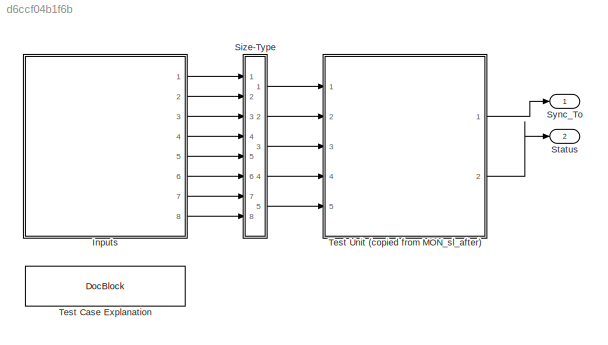
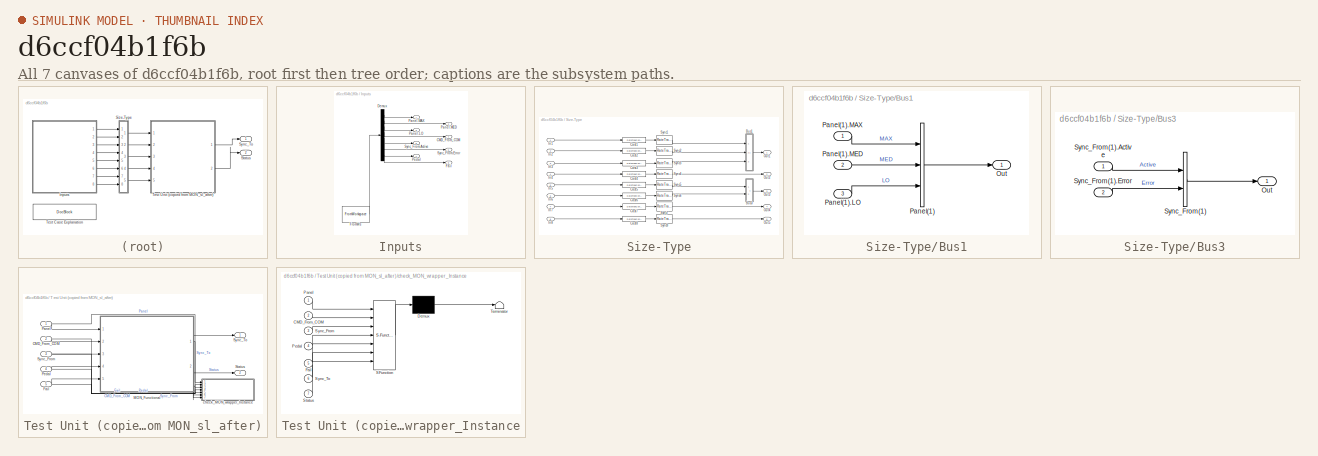
[diagram: thumbnail index - all 7 canvases of the model, root first then tree order]
MODEL slx_d6ccf04b1f6b
KIND model
CONFIG AbsTol = auto
CONFIG FixedStep = 0.01
CONFIG MaxStep = auto
CONFIG MinStep = auto
CONFIG RelTol = 1e-3
CONFIG SampleTimeConstraint = Unconstrained
CONFIG Solver = FixedStepDiscrete
CONFIG SolverMode = Auto
CONFIG SolverName = FixedStepDiscrete
CONFIG StartTime = 0
CONFIG StopTime = 0.01
BLOCK [SubSystem] Inputs
  ClipboardFcn = sigbuilder_block('clipboard');
  CloseFcn = sigbuilder_block('close');
  ContinueFcn = sigbuilder_block('continue');
  CopyFcn = sigbuilder_block('copy');
  DeleteFcn = sigbuilder_block('delete');
  LoadFcn = sigbuilder_block('load',[50 50 520 400 ]);
  MaskHideContents = on
  ModelCloseFcn = sigbuilder_block('modelClose');
  NameChangeFcn = sigbuilder_block('namechange');
  OpenFcn = sigbuilder_block('open');
  PauseFcn = sigbuilder_block('pause');
  Ports = [0, 8]
  PreSaveFcn = sigbuilder_block('preSave');
  RequestExecContextInheritance = off
  StartFcn = sigbuilder_block('start');
  StopFcn = sigbuilder_block('stop');
  Tag = STV Subsys
  Variant = off
BLOCK [Outport] Inputs/CMD_From_COM
  IconDisplay = Port number
  Port = 4
  Tag = STV Outport
BLOCK [Demux] Inputs/Demux
  Outputs = 8
  Ports = [1, 8]
  Tag = STV Demux
BLOCK [Outport] Inputs/Fail
  IconDisplay = Port number
  Port = 8
  Tag = STV Outport
BLOCK [FromWorkspace] Inputs/FromWs
  SampleTime = 0
  Tag = STV FromWs
  VariableName = tuvar
BLOCK [Outport] Inputs/Panel.LO
  IconDisplay = Port number
  Port = 3
  Tag = STV Outport
BLOCK [Outport] Inputs/Panel.MAX
  IconDisplay = Port number
  Tag = STV Outport
BLOCK [Outport] Inputs/Panel.MED
  IconDisplay = Port number
  Port = 2
  Tag = STV Outport
BLOCK [Outport] Inputs/Pedal
  IconDisplay = Port number
  Port = 7
  Tag = STV Outport
BLOCK [Outport] Inputs/Sync_From.Active
  IconDisplay = Port number
  Port = 5
  Tag = STV Outport
BLOCK [Outport] Inputs/Sync_From.Error
  IconDisplay = Port number
  Port = 6
  Tag = STV Outport
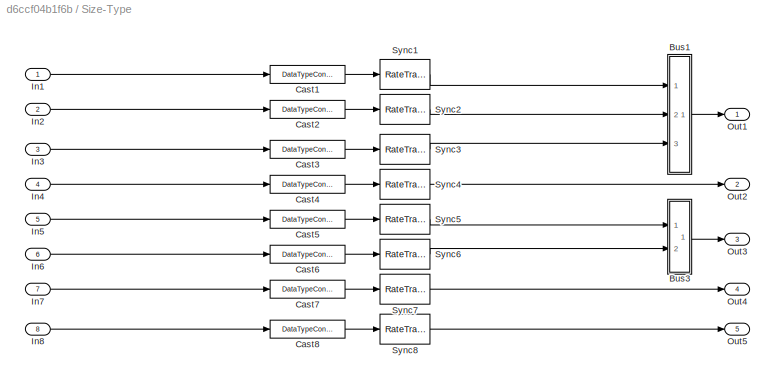
BLOCK [SubSystem] Size-Type
  Ports = [8, 5]
  RequestExecContextInheritance = off
  Variant = off
BLOCK [SubSystem] Size-Type/Bus1
  Ports = [3, 1]
  RequestExecContextInheritance = off
  Variant = off
BLOCK [Outport] Size-Type/Bus1/Out
  IconDisplay = Port number
BLOCK [BusCreator] Size-Type/Bus1/Panel(1)
  InheritFromInputs = on
  Inputs = 3
  NonVirtualBus = on
  OutDataTypeStr = Bus: PanelMsgImpl
  Ports = [3, 1]
BLOCK [Inport] Size-Type/Bus1/Panel(1).LO
  IconDisplay = Port number
  Port = 3
BLOCK [Inport] Size-Type/Bus1/Panel(1).MAX
  IconDisplay = Port number
BLOCK [Inport] Size-Type/Bus1/Panel(1).MED
  IconDisplay = Port number
  Port = 2
BLOCK [SubSystem] Size-Type/Bus3
  Ports = [2, 1]
  RequestExecContextInheritance = off
  Variant = off
BLOCK [Outport] Size-Type/Bus3/Out
  IconDisplay = Port number
BLOCK [BusCreator] Size-Type/Bus3/Sync_From(1)
  InheritFromInputs = on
  Inputs = 2
  NonVirtualBus = on
  OutDataTypeStr = Bus: SyncMsgImpl
  Ports = [2, 1]
BLOCK [Inport] Size-Type/Bus3/Sync_From(1).Active
  IconDisplay = Port number
BLOCK [Inport] Size-Type/Bus3/Sync_From(1).Error
  IconDisplay = Port number
  Port = 2
BLOCK [DataTypeConversion] Size-Type/Cast1
  OutDataTypeStr = boolean
  RndMeth = Nearest
BLOCK [DataTypeConversion] Size-Type/Cast2
  OutDataTypeStr = boolean
  RndMeth = Nearest
BLOCK [DataTypeConversion] Size-Type/Cast3
  OutDataTypeStr = boolean
  RndMeth = Nearest
BLOCK [DataTypeConversion] Size-Type/Cast4
  OutDataTypeStr = int32
  RndMeth = Nearest
BLOCK [DataTypeConversion] Size-Type/Cast5
  OutDataTypeStr = boolean
  RndMeth = Nearest
BLOCK [DataTypeConversion] Size-Type/Cast6
  OutDataTypeStr = boolean
  RndMeth = Nearest
BLOCK [DataTypeConversion] Size-Type/Cast7
  OutDataTypeStr = int32
  RndMeth = Nearest
BLOCK [DataTypeConversion] Size-Type/Cast8
  OutDataTypeStr = boolean
  RndMeth = Nearest
BLOCK [Inport] Size-Type/In1
  IconDisplay = Port number
BLOCK [Inport] Size-Type/In2
  IconDisplay = Port number
  Port = 2
BLOCK [Inport] Size-Type/In3
  IconDisplay = Port number
  Port = 3
BLOCK [Inport] Size-Type/In4
  IconDisplay = Port number
  Port = 4
BLOCK [Inport] Size-Type/In5
  IconDisplay = Port number
  Port = 5
BLOCK [Inport] Size-Type/In6
  IconDisplay = Port number
  Port = 6
BLOCK [Inport] Size-Type/In7
  IconDisplay = Port number
  Port = 7
BLOCK [Inport] Size-Type/In8
  IconDisplay = Port number
  Port = 8
BLOCK [Outport] Size-Type/Out1
  IconDisplay = Port number
BLOCK [Outport] Size-Type/Out2
  IconDisplay = Port number
  Port = 2
BLOCK [Outport] Size-Type/Out3
  IconDisplay = Port number
  Port = 3
BLOCK [Outport] Size-Type/Out4
  IconDisplay = Port number
  Port = 4
BLOCK [Outport] Size-Type/Out5
  IconDisplay = Port number
  Port = 5
BLOCK [RateTransition] Size-Type/Sync1
  OutPortSampleTime = [0.01,0]
BLOCK [RateTransition] Size-Type/Sync2
  OutPortSampleTime = [0.01,0]
BLOCK [RateTransition] Size-Type/Sync3
  OutPortSampleTime = [0.01,0]
BLOCK [RateTransition] Size-Type/Sync4
  OutPortSampleTime = [0.01,0]
BLOCK [RateTransition] Size-Type/Sync5
  OutPortSampleTime = [0.01,0]
BLOCK [RateTransition] Size-Type/Sync6
  OutPortSampleTime = [0.01,0]
BLOCK [RateTransition] Size-Type/Sync7
  OutPortSampleTime = [0.01,0]
BLOCK [RateTransition] Size-Type/Sync8
  OutPortSampleTime = [0.01,0]
BLOCK [Outport] Status
  BusOutputAsStruct = on
  IconDisplay = Port number
  OutDataTypeStr = Bus: ChannelStatusImpl
  Port = 2
BLOCK [Outport] Sync_To
  BusOutputAsStruct = on
  IconDisplay = Port number
  OutDataTypeStr = Bus: SyncMsgImpl
BLOCK [Reference] Test Case Explanation  REF=simulink/Model-Wide
Utilities/DocBlock
  Ports = []
  SourceBlock = simulink/Model-Wide\nUtilities/DocBlock
  SourceType = DocBlock
  UserDataPersistent = on
BLOCK [SubSystem] Test Unit (copied from MON_sl_after)
  Permissions = ReadOnly
  Ports = [5, 2]
  RequestExecContextInheritance = off
  Variant = off
BLOCK [Inport] Test Unit (copied from MON_sl_after)/CMD_From_COM
  IconDisplay = Port number
  Interpolate = off
  OutDataTypeStr = int32
  Port = 2
  SampleTime = dt
BLOCK [Inport] Test Unit (copied from MON_sl_after)/Fail
  IconDisplay = Port number
  Interpolate = off
  OutDataTypeStr = boolean
  Port = 5
  SampleTime = dt
BLOCK [ModelReference] Test Unit (copied from MON_sl_after)/MON_Functional
  ModelNameDialog = MON_Functional.slx
  ModelReferenceVersion = 1.2
  Ports = [5, 2]
  Variant = off
BLOCK [Inport] Test Unit (copied from MON_sl_after)/Panel
  BusOutputAsStruct = on
  IconDisplay = Port number
  Interpolate = off
  OutDataTypeStr = Bus: PanelMsgImpl
  SampleTime = dt
BLOCK [Inport] Test Unit (copied from MON_sl_after)/Pedal
  IconDisplay = Port number
  Interpolate = off
  OutDataTypeStr = int32
  Port = 4
  SampleTime = dt
BLOCK [Outport] Test Unit (copied from MON_sl_after)/Status
  BusOutputAsStruct = on
  IconDisplay = Port number
  OutDataTypeStr = Bus: ChannelStatusImpl
  Port = 2
BLOCK [Inport] Test Unit (copied from MON_sl_after)/Sync_From
  BusOutputAsStruct = on
  IconDisplay = Port number
  Interpolate = off
  OutDataTypeStr = Bus: SyncMsgImpl
  Port = 3
  SampleTime = dt
BLOCK [Outport] Test Unit (copied from MON_sl_after)/Sync_To
  BusOutputAsStruct = on
  IconDisplay = Port number
  OutDataTypeStr = Bus: SyncMsgImpl
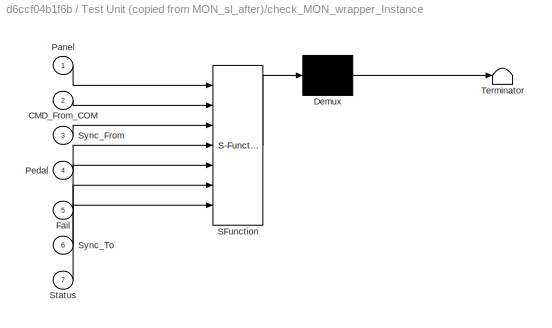
BLOCK [SubSystem] Test Unit (copied from MON_sl_after)/check_MON_wrapper_Instance
  ErrorFcn = Stateflow.Translate.translate
  PermitHierarchicalResolution = ExplicitOnly
  Ports = [7]
  RequestExecContextInheritance = off
  SFBlockType = MATLAB Function
  TreatAsAtomicUnit = on
  Variant = off
BLOCK [Demux] Test Unit (copied from MON_sl_after)/check_MON_wrapper_Instance/ Demux 
  Outputs = 1
  Ports = [1, 1]
BLOCK [S-Function] Test Unit (copied from MON_sl_after)/check_MON_wrapper_Instance/ SFunction 
  EnableBusSupport = off
  FunctionName = sf_sfun
  PortCounts = [7 1]
  Ports = [7, 1]
  SFunctionDeploymentMode = off
  Tag = Stateflow S-Function MON_sl_after_harness 2
BLOCK [Terminator] Test Unit (copied from MON_sl_after)/check_MON_wrapper_Instance/ Terminator 
BLOCK [Inport] Test Unit (copied from MON_sl_after)/check_MON_wrapper_Instance/CMD_From_COM
  IconDisplay = Port number
  Port = 2
BLOCK [Inport] Test Unit (copied from MON_sl_after)/check_MON_wrapper_Instance/Fail
  IconDisplay = Port number
  Port = 5
BLOCK [Inport] Test Unit (copied from MON_sl_after)/check_MON_wrapper_Instance/Panel
  IconDisplay = Port number
BLOCK [Inport] Test Unit (copied from MON_sl_after)/check_MON_wrapper_Instance/Pedal
  IconDisplay = Port number
  Port = 4
BLOCK [Inport] Test Unit (copied from MON_sl_after)/check_MON_wrapper_Instance/Status
  IconDisplay = Port number
  Port = 7
BLOCK [Inport] Test Unit (copied from MON_sl_after)/check_MON_wrapper_Instance/Sync_From
  IconDisplay = Port number
  Port = 3
BLOCK [Inport] Test Unit (copied from MON_sl_after)/check_MON_wrapper_Instance/Sync_To
  IconDisplay = Port number
  Port = 6
LINE Inputs/Demux:1 -> Inputs/Panel.MAX:1
LINE Inputs/Demux:2 -> Inputs/Panel.MED:1
LINE Inputs/Demux:3 -> Inputs/Panel.LO:1
LINE Inputs/Demux:4 -> Inputs/CMD_From_COM:1
LINE Inputs/Demux:5 -> Inputs/Sync_From.Active:1
LINE Inputs/Demux:6 -> Inputs/Sync_From.Error:1
LINE Inputs/Demux:7 -> Inputs/Pedal:1
LINE Inputs/Demux:8 -> Inputs/Fail:1
LINE Inputs/FromWs:1 -> Inputs/Demux:1
LINE Inputs:1 -> Size-Type:1
LINE Inputs:2 -> Size-Type:2
LINE Inputs:3 -> Size-Type:3
LINE Inputs:4 -> Size-Type:4
LINE Inputs:5 -> Size-Type:5
LINE Inputs:6 -> Size-Type:6
LINE Inputs:7 -> Size-Type:7
LINE Inputs:8 -> Size-Type:8
LINE Size-Type/Bus1/Panel(1).LO:1 -> Size-Type/Bus1/Panel(1):3
LINE Size-Type/Bus1/Panel(1).MAX:1 -> Size-Type/Bus1/Panel(1):1
LINE Size-Type/Bus1/Panel(1).MED:1 -> Size-Type/Bus1/Panel(1):2
LINE Size-Type/Bus1/Panel(1):1 -> Size-Type/Bus1/Out:1
LINE Size-Type/Bus1:1 -> Size-Type/Out1:1
LINE Size-Type/Bus3/Sync_From(1).Active:1 -> Size-Type/Bus3/Sync_From(1):1
LINE Size-Type/Bus3/Sync_From(1).Error:1 -> Size-Type/Bus3/Sync_From(1):2
LINE Size-Type/Bus3/Sync_From(1):1 -> Size-Type/Bus3/Out:1
LINE Size-Type/Bus3:1 -> Size-Type/Out3:1
LINE Size-Type/Cast1:1 -> Size-Type/Sync1:1
LINE Size-Type/Cast2:1 -> Size-Type/Sync2:1
LINE Size-Type/Cast3:1 -> Size-Type/Sync3:1
LINE Size-Type/Cast4:1 -> Size-Type/Sync4:1
LINE Size-Type/Cast5:1 -> Size-Type/Sync5:1
LINE Size-Type/Cast6:1 -> Size-Type/Sync6:1
LINE Size-Type/Cast7:1 -> Size-Type/Sync7:1
LINE Size-Type/Cast8:1 -> Size-Type/Sync8:1
LINE Size-Type/In1:1 -> Size-Type/Cast1:1
LINE Size-Type/In2:1 -> Size-Type/Cast2:1
LINE Size-Type/In3:1 -> Size-Type/Cast3:1
LINE Size-Type/In4:1 -> Size-Type/Cast4:1
LINE Size-Type/In5:1 -> Size-Type/Cast5:1
LINE Size-Type/In6:1 -> Size-Type/Cast6:1
LINE Size-Type/In7:1 -> Size-Type/Cast7:1
LINE Size-Type/In8:1 -> Size-Type/Cast8:1
LINE Size-Type/Sync1:1 -> Size-Type/Bus1:1
LINE Size-Type/Sync2:1 -> Size-Type/Bus1:2
LINE Size-Type/Sync3:1 -> Size-Type/Bus1:3
LINE Size-Type/Sync4:1 -> Size-Type/Out2:1
LINE Size-Type/Sync5:1 -> Size-Type/Bus3:1
LINE Size-Type/Sync6:1 -> Size-Type/Bus3:2
LINE Size-Type/Sync7:1 -> Size-Type/Out4:1
LINE Size-Type/Sync8:1 -> Size-Type/Out5:1
LINE Size-Type:1 -> Test Unit (copied from MON_sl_after):1
LINE Size-Type:2 -> Test Unit (copied from MON_sl_after):2
LINE Size-Type:3 -> Test Unit (copied from MON_sl_after):3
LINE Size-Type:4 -> Test Unit (copied from MON_sl_after):4
LINE Size-Type:5 -> Test Unit (copied from MON_sl_after):5
NET Test Unit (copied from MON_sl_after)/CMD_From_COM:1 -> Test Unit (copied from MON_sl_after)/MON_Functional:2, Test Unit (copied from MON_sl_after)/check_MON_wrapper_Instance:2
NET Test Unit (copied from MON_sl_after)/Fail:1 -> Test Unit (copied from MON_sl_after)/MON_Functional:5, Test Unit (copied from MON_sl_after)/check_MON_wrapper_Instance:5
NET Test Unit (copied from MON_sl_after)/MON_Functional:1 -> Test Unit (copied from MON_sl_after)/Sync_To:1, Test Unit (copied from MON_sl_after)/check_MON_wrapper_Instance:6
NET Test Unit (copied from MON_sl_after)/MON_Functional:2 -> Test Unit (copied from MON_sl_after)/Status:1, Test Unit (copied from MON_sl_after)/check_MON_wrapper_Instance:7
NET Test Unit (copied from MON_sl_after)/Panel:1 -> Test Unit (copied from MON_sl_after)/MON_Functional:1, Test Unit (copied from MON_sl_after)/check_MON_wrapper_Instance:1
NET Test Unit (copied from MON_sl_after)/Pedal:1 -> Test Unit (copied from MON_sl_after)/MON_Functional:4, Test Unit (copied from MON_sl_after)/check_MON_wrapper_Instance:4
NET Test Unit (copied from MON_sl_after)/Sync_From:1 -> Test Unit (copied from MON_sl_after)/MON_Functional:3, Test Unit (copied from MON_sl_after)/check_MON_wrapper_Instance:3
LINE Test Unit (copied from MON_sl_after):1 -> Sync_To:1
LINE Test Unit (copied from MON_sl_after):2 -> Status:1
note: NET lines group one-source signal fan-out (src -> all destinations, sorted); 1:1 wires keep LINE
CHART Test Unit (copied from MON_sl_after)/check_MON_wrapper_Instance states=1 transitions=1
  STATE_LABEL 'eML_blk_kernel()'
  STATE_LABEL 'SCRIPT:\nfunction check_MON_wrapper_Instance(Panel, CMD_From_COM, Sync_From, Pedal, Fail, Sync_To, Status)\n\npersistent pre_c_Agree_Nodes__Duration_0\npersistent pre_p_Agree_Nodes__Rise_2_Agree_Nodes__Brake_Mode_0\npersistent pre_mode_Agree_Nodes__Brake_Mode_0\npersistent pre_Active\npersistent first_time\npersistent pre_p_Agree_Nodes__Rise_0_Agree_Nodes__Brake_Mode_0\npersistent pre_p_Agree_Nodes__Rise_1...<+3608ch>'
